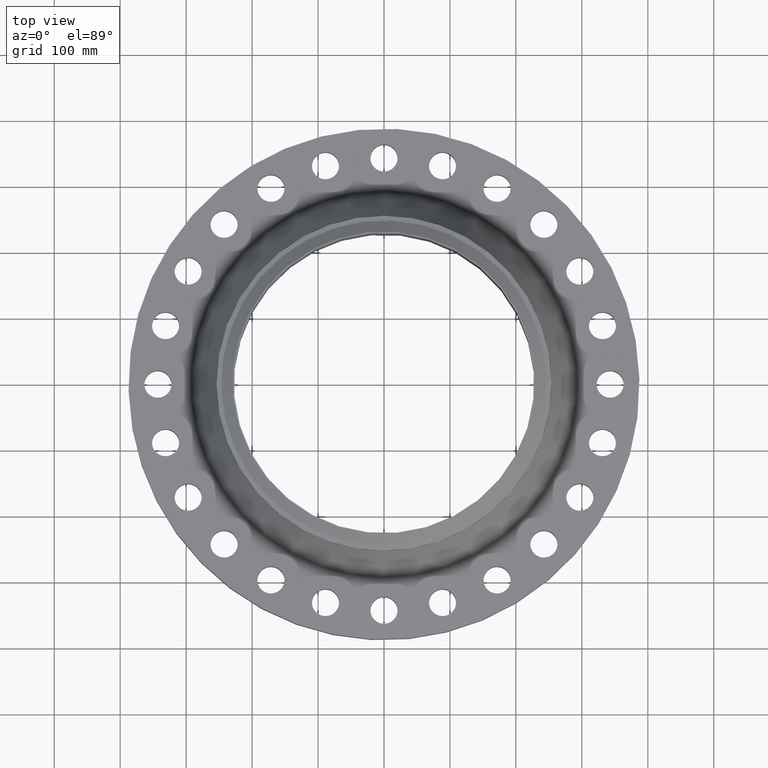
[diagram: clean part render]
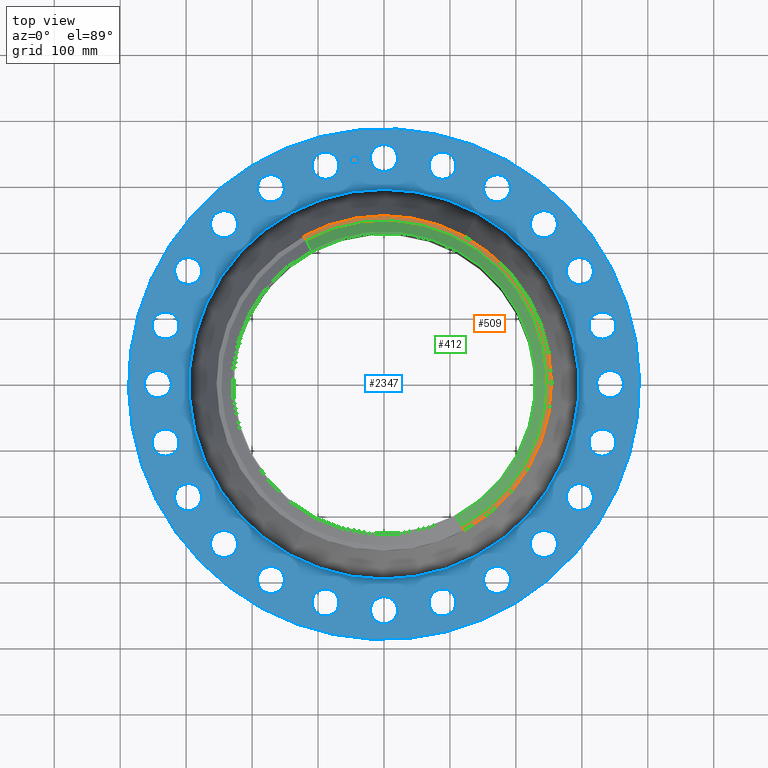
[diagram: same view with three faces highlighted in distinct colors, each labeled with its STEP entity id]
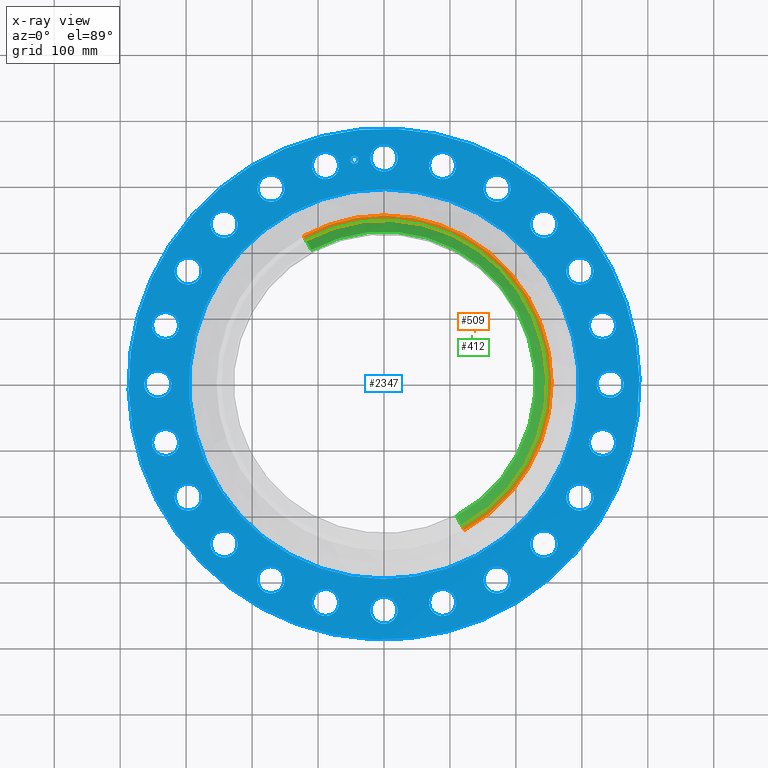
[diagram: x-ray of the same camera — body ghosted, the three highlighted faces saturated]
A machine part, top view with three faces highlighted in distinct colors.
The next image is the same camera in x-ray (body ghosted, the three faces saturated) — at least one of them is partly hidden behind the body in this view.
Their STEP definitions:

[orange] entity #509 — the highlighted conical surface has half-angle 80 deg.
#270=AXIS2_PLACEMENT_3D('Circle Axis2P3D',#268,#269,$) ;
#297=AXIS2_PLACEMENT_3D('Circle Axis2P3D',#295,#296,$) ;
#311=AXIS2_PLACEMENT_3D('Cone Axis2P3D',#308,#309,#310) ;
#480=AXIS2_PLACEMENT_3D('Circle Axis2P3D',#478,#479,$) ;
#265=CARTESIAN_POINT('Vertex',(4.79425538606,8.77582561894,6.05653971118)) ;
#268=CARTESIAN_POINT('Axis2P3D Location',(0.,0.,6.05653971118)) ;
#272=CARTESIAN_POINT('Vertex',(4.79425538606,-8.77582561894,6.05653971118)) ;
#292=CARTESIAN_POINT('Vertex',(-4.79425538606,8.77582561894,6.05653971118)) ;
#295=CARTESIAN_POINT('Axis2P3D Location',(0.,0.,6.05653971118)) ;
#308=CARTESIAN_POINT('Axis2P3D Location',(0.,0.,6.10141601924)) ;
#313=CARTESIAN_POINT('Line Origine',(4.73324700243,-8.66415052179,6.07897786521)) ;
#317=CARTESIAN_POINT('Vertex',(4.67223861881,-8.55247542463,6.10141601924)) ;
#324=CARTESIAN_POINT('Vertex',(-4.67223861881,8.55247542463,6.10141601924)) ;
#327=CARTESIAN_POINT('Line Origine',(-4.73324700243,8.66415052179,6.07897786521)) ;
#478=CARTESIAN_POINT('Axis2P3D Location',(0.,0.,6.10141601924)) ;
#269=DIRECTION('Axis2P3D Direction',(0.,0.,-0.0393700787402)) ;
#296=DIRECTION('Axis2P3D Direction',(0.,0.,-0.0393700787402)) ;
#309=DIRECTION('Axis2P3D Direction',(-0.,-0.,-0.0393700787402)) ;
#310=DIRECTION('Axis2P3D XDirection',(-0.0188750212049,0.0345504945626,0.)) ;
#314=DIRECTION('Vector Direction',(0.0185882672208,-0.0340255949157,-0.00683654242783)) ;
#328=DIRECTION('Vector Direction',(-0.0185882672208,0.0340255949157,-0.00683654242783)) ;
#479=DIRECTION('Axis2P3D Direction',(0.,0.,0.0393700787402)) ;
#315=VECTOR('Line Direction',#314,0.0393700787402) ;
#329=VECTOR('Line Direction',#328,0.0393700787402) ;
#503=ORIENTED_EDGE('',*,*,#331,.F.) ;
#504=ORIENTED_EDGE('',*,*,#482,.F.) ;
#505=ORIENTED_EDGE('',*,*,#319,.T.) ;
#506=ORIENTED_EDGE('',*,*,#274,.T.) ;
#507=ORIENTED_EDGE('',*,*,#299,.F.) ;
#509=ADVANCED_FACE('PartBody',(#508),#312,.T.) ;
#271=CIRCLE('generated circle',#270,10.) ;
#298=CIRCLE('generated circle',#297,10.) ;
#481=CIRCLE('generated circle',#480,9.74549380996) ;
#312=CONICAL_SURFACE('Cone',#311,9.74549380996,1.3962634016) ;
#274=EDGE_CURVE('',#273,#266,#271,.F.) ;
#299=EDGE_CURVE('',#293,#266,#298,.T.) ;
#319=EDGE_CURVE('',#318,#273,#316,.T.) ;
#331=EDGE_CURVE('',#325,#293,#330,.T.) ;
#482=EDGE_CURVE('',#318,#325,#481,.T.) ;
#502=EDGE_LOOP('',(#503,#504,#505,#506,#507)) ;
#508=FACE_OUTER_BOUND('',#502,.T.) ;
#316=LINE('Line',#313,#315) ;
#330=LINE('Line',#327,#329) ;
#266=VERTEX_POINT('',#265) ;
#273=VERTEX_POINT('',#272) ;
#293=VERTEX_POINT('',#292) ;
#318=VERTEX_POINT('',#317) ;
#325=VERTEX_POINT('',#324) ;

[blue] entity #2347 — the highlighted planar face has unit normal (0, 0, -1).
#65=AXIS2_PLACEMENT_3D('Circle Axis2P3D',#63,#64,$) ;
#82=AXIS2_PLACEMENT_3D('Circle Axis2P3D',#80,#81,$) ;
#115=AXIS2_PLACEMENT_3D('Circle Axis2P3D',#113,#114,$) ;
#139=AXIS2_PLACEMENT_3D('Circle Axis2P3D',#137,#138,$) ;
#156=AXIS2_PLACEMENT_3D('Circle Axis2P3D',#154,#155,$) ;
#191=AXIS2_PLACEMENT_3D('Circle Axis2P3D',#189,#190,$) ;
#1020=AXIS2_PLACEMENT_3D('Circle Axis2P3D',#1018,#1019,$) ;
#1032=AXIS2_PLACEMENT_3D('Circle Axis2P3D',#1030,#1031,$) ;
#1063=AXIS2_PLACEMENT_3D('Circle Axis2P3D',#1061,#1062,$) ;
#1075=AXIS2_PLACEMENT_3D('Circle Axis2P3D',#1073,#1074,$) ;
#1106=AXIS2_PLACEMENT_3D('Circle Axis2P3D',#1104,#1105,$) ;
#1118=AXIS2_PLACEMENT_3D('Circle Axis2P3D',#1116,#1117,$) ;
#1149=AXIS2_PLACEMENT_3D('Circle Axis2P3D',#1147,#1148,$) ;
#1161=AXIS2_PLACEMENT_3D('Circle Axis2P3D',#1159,#1160,$) ;
#1192=AXIS2_PLACEMENT_3D('Circle Axis2P3D',#1190,#1191,$) ;
#1204=AXIS2_PLACEMENT_3D('Circle Axis2P3D',#1202,#1203,$) ;
#1235=AXIS2_PLACEMENT_3D('Circle Axis2P3D',#1233,#1234,$) ;
#1247=AXIS2_PLACEMENT_3D('Circle Axis2P3D',#1245,#1246,$) ;
#1278=AXIS2_PLACEMENT_3D('Circle Axis2P3D',#1276,#1277,$) ;
#1290=AXIS2_PLACEMENT_3D('Circle Axis2P3D',#1288,#1289,$) ;
#1321=AXIS2_PLACEMENT_3D('Circle Axis2P3D',#1319,#1320,$) ;
#1333=AXIS2_PLACEMENT_3D('Circle Axis2P3D',#1331,#1332,$) ;
#1364=AXIS2_PLACEMENT_3D('Circle Axis2P3D',#1362,#1363,$) ;
#1376=AXIS2_PLACEMENT_3D('Circle Axis2P3D',#1374,#1375,$) ;
#1407=AXIS2_PLACEMENT_3D('Circle Axis2P3D',#1405,#1406,$) ;
#1419=AXIS2_PLACEMENT_3D('Circle Axis2P3D',#1417,#1418,$) ;
#1450=AXIS2_PLACEMENT_3D('Circle Axis2P3D',#1448,#1449,$) ;
#1462=AXIS2_PLACEMENT_3D('Circle Axis2P3D',#1460,#1461,$) ;
#1493=AXIS2_PLACEMENT_3D('Circle Axis2P3D',#1491,#1492,$) ;
#1505=AXIS2_PLACEMENT_3D('Circle Axis2P3D',#1503,#1504,$) ;
#1536=AXIS2_PLACEMENT_3D('Circle Axis2P3D',#1534,#1535,$) ;
#1548=AXIS2_PLACEMENT_3D('Circle Axis2P3D',#1546,#1547,$) ;
#1579=AXIS2_PLACEMENT_3D('Circle Axis2P3D',#1577,#1578,$) ;
#1591=AXIS2_PLACEMENT_3D('Circle Axis2P3D',#1589,#1590,$) ;
#1622=AXIS2_PLACEMENT_3D('Circle Axis2P3D',#1620,#1621,$) ;
#1634=AXIS2_PLACEMENT_3D('Circle Axis2P3D',#1632,#1633,$) ;
#1665=AXIS2_PLACEMENT_3D('Circle Axis2P3D',#1663,#1664,$) ;
#1677=AXIS2_PLACEMENT_3D('Circle Axis2P3D',#1675,#1676,$) ;
#1708=AXIS2_PLACEMENT_3D('Circle Axis2P3D',#1706,#1707,$) ;
#1720=AXIS2_PLACEMENT_3D('Circle Axis2P3D',#1718,#1719,$) ;
#1751=AXIS2_PLACEMENT_3D('Circle Axis2P3D',#1749,#1750,$) ;
#1763=AXIS2_PLACEMENT_3D('Circle Axis2P3D',#1761,#1762,$) ;
#1794=AXIS2_PLACEMENT_3D('Circle Axis2P3D',#1792,#1793,$) ;
#1806=AXIS2_PLACEMENT_3D('Circle Axis2P3D',#1804,#1805,$) ;
#1837=AXIS2_PLACEMENT_3D('Circle Axis2P3D',#1835,#1836,$) ;
#1849=AXIS2_PLACEMENT_3D('Circle Axis2P3D',#1847,#1848,$) ;
#1880=AXIS2_PLACEMENT_3D('Circle Axis2P3D',#1878,#1879,$) ;
#1892=AXIS2_PLACEMENT_3D('Circle Axis2P3D',#1890,#1891,$) ;
#1923=AXIS2_PLACEMENT_3D('Circle Axis2P3D',#1921,#1922,$) ;
#1935=AXIS2_PLACEMENT_3D('Circle Axis2P3D',#1933,#1934,$) ;
#1966=AXIS2_PLACEMENT_3D('Circle Axis2P3D',#1964,#1965,$) ;
#1978=AXIS2_PLACEMENT_3D('Circle Axis2P3D',#1976,#1977,$) ;
#2223=AXIS2_PLACEMENT_3D('Plane Axis2P3D',#2220,#2221,#2222) ;
#2331=AXIS2_PLACEMENT_3D('Circle Axis2P3D',#2329,#2330,$) ;
#2340=AXIS2_PLACEMENT_3D('Circle Axis2P3D',#2338,#2339,$) ;
#46=CARTESIAN_POINT('Vertex',(-0.710841875134,13.8883346863,2.75000000001)) ;
#60=CARTESIAN_POINT('Vertex',(0.710841875134,13.1116653138,2.75000000001)) ;
#63=CARTESIAN_POINT('Axis2P3D Location',(0.,13.5000000001,2.75000000001)) ;
#80=CARTESIAN_POINT('Axis2P3D Location',(0.,13.5000000001,2.75000000001)) ;
#110=CARTESIAN_POINT('Vertex',(-7.31123946374,-13.3831340689,2.75000000001)) ;
#113=CARTESIAN_POINT('Axis2P3D Location',(0.,0.,2.75000000001)) ;
#117=CARTESIAN_POINT('Vertex',(7.31123946374,13.3831340689,2.75000000001)) ;
#137=CARTESIAN_POINT('Axis2P3D Location',(0.,0.,2.75000000001)) ;
#154=CARTESIAN_POINT('Axis2P3D Location',(0.,0.,2.75000000001)) ;
#158=CARTESIAN_POINT('Vertex',(5.5774594257,10.2094709971,2.75000000001)) ;
#160=CARTESIAN_POINT('Vertex',(-5.5774594257,-10.2094709971,2.75000000001)) ;
#189=CARTESIAN_POINT('Axis2P3D Location',(0.,0.,2.75000000001)) ;
#1008=CARTESIAN_POINT('Vertex',(-2.90794499598,-13.599080573,2.75000000001)) ;
#1015=CARTESIAN_POINT('Vertex',(-4.08016922182,-12.4809167369,2.75000000001)) ;
#1018=CARTESIAN_POINT('Axis2P3D Location',(-3.4940571089,-13.039998655,2.75000000001)) ;
#1030=CARTESIAN_POINT('Axis2P3D Location',(-3.4940571089,-13.039998655,2.75000000001)) ;
#1051=CARTESIAN_POINT('Vertex',(6.32856022122,12.3830715922,2.75000000001)) ;
#1058=CARTESIAN_POINT('Vertex',(7.17143977883,10.9996143101,2.75000000001)) ;
#1061=CARTESIAN_POINT('Axis2P3D Location',(6.75000000003,11.6913429511,2.75000000001)) ;
#1073=CARTESIAN_POINT('Axis2P3D Location',(6.75000000003,11.6913429511,2.75000000001)) ;
#1094=CARTESIAN_POINT('Vertex',(-6.32856022122,-12.3830715922,2.75000000001)) ;
#1101=CARTESIAN_POINT('Vertex',(-7.17143977883,-10.9996143101,2.75000000001)) ;
#1104=CARTESIAN_POINT('Axis2P3D Location',(-6.75000000003,-11.6913429511,2.75000000001)) ;
#1116=CARTESIAN_POINT('Axis2P3D Location',(-6.75000000003,-11.6913429511,2.75000000001)) ;
#1137=CARTESIAN_POINT('Vertex',(9.31789452583,10.3231767463,2.75000000001)) ;
#1144=CARTESIAN_POINT('Vertex',(9.77398856628,8.76870634577,2.75000000001)) ;
#1147=CARTESIAN_POINT('Axis2P3D Location',(9.54594154606,9.54594154606,2.75000000001)) ;
#1159=CARTESIAN_POINT('Axis2P3D Location',(9.54594154606,9.54594154606,2.75000000001)) ;
#1180=CARTESIAN_POINT('Vertex',(-9.31789452583,-10.3231767463,2.75000000001)) ;
#1187=CARTESIAN_POINT('Vertex',(-9.77398856628,-8.76870634577,2.75000000001)) ;
#1190=CARTESIAN_POINT('Axis2P3D Location',(-9.54594154606,-9.54594154606,2.75000000001)) ;
#1202=CARTESIAN_POINT('Axis2P3D Location',(-9.54594154606,-9.54594154606,2.75000000001)) ;
#1223=CARTESIAN_POINT('Vertex',(11.6722297171,7.5597744651,2.75000000001)) ;
#1230=CARTESIAN_POINT('Vertex',(11.7104561852,5.94022553495,2.75000000001)) ;
#1233=CARTESIAN_POINT('Axis2P3D Location',(11.6913429511,6.75000000003,2.75000000001)) ;
#1245=CARTESIAN_POINT('Axis2P3D Location',(11.6913429511,6.75000000003,2.75000000001)) ;
#1266=CARTESIAN_POINT('Vertex',(-11.6722297171,-7.5597744651,2.75000000001)) ;
#1273=CARTESIAN_POINT('Vertex',(-11.7104561852,-5.94022553495,2.75000000001)) ;
#1276=CARTESIAN_POINT('Axis2P3D Location',(-11.6913429511,-6.75000000003,2.75000000001)) ;
#1288=CARTESIAN_POINT('Axis2P3D Location',(-11.6913429511,-6.75000000003,2.75000000001)) ;
#1309=CARTESIAN_POINT('Vertex',(13.2311217423,4.28118604718,2.75000000001)) ;
#1316=CARTESIAN_POINT('Vertex',(12.8488755676,2.70692817062,2.75000000001)) ;
#1319=CARTESIAN_POINT('Axis2P3D Location',(13.039998655,3.4940571089,2.75000000001)) ;
#1331=CARTESIAN_POINT('Axis2P3D Location',(13.039998655,3.4940571089,2.75000000001)) ;
#1352=CARTESIAN_POINT('Vertex',(-13.2311217423,-4.28118604718,2.75000000001)) ;
#1359=CARTESIAN_POINT('Vertex',(-12.8488755676,-2.70692817062,2.75000000001)) ;
#1362=CARTESIAN_POINT('Axis2P3D Location',(-13.039998655,-3.4940571089,2.75000000001)) ;
#1374=CARTESIAN_POINT('Axis2P3D Location',(-13.039998655,-3.4940571089,2.75000000001)) ;
#1395=CARTESIAN_POINT('Vertex',(13.8883346863,0.710841875134,2.75000000001)) ;
#1402=CARTESIAN_POINT('Vertex',(13.1116653138,-0.710841875134,2.75000000001)) ;
#1405=CARTESIAN_POINT('Axis2P3D Location',(13.5000000001,-1.41129328698E-015,2.75000000001)) ;
#1417=CARTESIAN_POINT('Axis2P3D Location',(13.5000000001,-1.41129328698E-015,2.75000000001)) ;
#1438=CARTESIAN_POINT('Vertex',(-13.8883346863,-0.710841875134,2.75000000001)) ;
#1445=CARTESIAN_POINT('Vertex',(-13.1116653138,0.710841875134,2.75000000001)) ;
#1448=CARTESIAN_POINT('Axis2P3D Location',(-13.5000000001,-2.47990976828E-015,2.75000000001)) ;
#1460=CARTESIAN_POINT('Axis2P3D Location',(-13.5000000001,-2.47990976828E-015,2.75000000001)) ;
#1481=CARTESIAN_POINT('Vertex',(13.599080573,-2.90794499598,2.75000000001)) ;
#1488=CARTESIAN_POINT('Vertex',(12.4809167369,-4.08016922182,2.75000000001)) ;
#1491=CARTESIAN_POINT('Axis2P3D Location',(13.039998655,-3.4940571089,2.75000000001)) ;
#1503=CARTESIAN_POINT('Axis2P3D Location',(13.039998655,-3.4940571089,2.75000000001)) ;
#1524=CARTESIAN_POINT('Vertex',(-13.599080573,2.90794499598,2.75000000001)) ;
#1531=CARTESIAN_POINT('Vertex',(-12.4809167369,4.08016922182,2.75000000001)) ;
#1534=CARTESIAN_POINT('Axis2P3D Location',(-13.039998655,3.4940571089,2.75000000001)) ;
#1546=CARTESIAN_POINT('Axis2P3D Location',(-13.039998655,3.4940571089,2.75000000001)) ;
#1567=CARTESIAN_POINT('Vertex',(12.3830715922,-6.32856022122,2.75000000001)) ;
#1574=CARTESIAN_POINT('Vertex',(10.9996143101,-7.17143977883,2.75000000001)) ;
#1577=CARTESIAN_POINT('Axis2P3D Location',(11.6913429511,-6.75000000003,2.75000000001)) ;
#1589=CARTESIAN_POINT('Axis2P3D Location',(11.6913429511,-6.75000000003,2.75000000001)) ;
#1610=CARTESIAN_POINT('Vertex',(-12.3830715922,6.32856022122,2.75000000001)) ;
#1617=CARTESIAN_POINT('Vertex',(-10.9996143101,7.17143977883,2.75000000001)) ;
#1620=CARTESIAN_POINT('Axis2P3D Location',(-11.6913429511,6.75000000003,2.75000000001)) ;
#1632=CARTESIAN_POINT('Axis2P3D Location',(-11.6913429511,6.75000000003,2.75000000001)) ;
#1653=CARTESIAN_POINT('Vertex',(10.3231767463,-9.31789452583,2.75000000001)) ;
#1660=CARTESIAN_POINT('Vertex',(8.76870634577,-9.77398856628,2.75000000001)) ;
#1663=CARTESIAN_POINT('Axis2P3D Location',(9.54594154606,-9.54594154606,2.75000000001)) ;
#1675=CARTESIAN_POINT('Axis2P3D Location',(9.54594154606,-9.54594154606,2.75000000001)) ;
#1696=CARTESIAN_POINT('Vertex',(-10.3231767463,9.31789452583,2.75000000001)) ;
#1703=CARTESIAN_POINT('Vertex',(-8.76870634577,9.77398856628,2.75000000001)) ;
#1706=CARTESIAN_POINT('Axis2P3D Location',(-9.54594154606,9.54594154606,2.75000000001)) ;
#1718=CARTESIAN_POINT('Axis2P3D Location',(-9.54594154606,9.54594154606,2.75000000001)) ;
#1739=CARTESIAN_POINT('Vertex',(7.5597744651,-11.6722297171,2.75000000001)) ;
#1746=CARTESIAN_POINT('Vertex',(5.94022553495,-11.7104561852,2.75000000001)) ;
#1749=CARTESIAN_POINT('Axis2P3D Location',(6.75000000003,-11.6913429511,2.75000000001)) ;
#1761=CARTESIAN_POINT('Axis2P3D Location',(6.75000000003,-11.6913429511,2.75000000001)) ;
#1782=CARTESIAN_POINT('Vertex',(-7.5597744651,11.6722297171,2.75000000001)) ;
#1789=CARTESIAN_POINT('Vertex',(-5.94022553495,11.7104561852,2.75000000001)) ;
#1792=CARTESIAN_POINT('Axis2P3D Location',(-6.75000000003,11.6913429511,2.75000000001)) ;
#1804=CARTESIAN_POINT('Axis2P3D Location',(-6.75000000003,11.6913429511,2.75000000001)) ;
#1825=CARTESIAN_POINT('Vertex',(4.28118604718,-13.2311217423,2.75000000001)) ;
#1832=CARTESIAN_POINT('Vertex',(2.70692817062,-12.8488755676,2.75000000001)) ;
#1835=CARTESIAN_POINT('Axis2P3D Location',(3.4940571089,-13.039998655,2.75000000001)) ;
#1847=CARTESIAN_POINT('Axis2P3D Location',(3.4940571089,-13.039998655,2.75000000001)) ;
#1868=CARTESIAN_POINT('Vertex',(-4.28118604718,13.2311217423,2.75000000001)) ;
#1875=CARTESIAN_POINT('Vertex',(-2.70692817062,12.8488755676,2.75000000001)) ;
#1878=CARTESIAN_POINT('Axis2P3D Location',(-3.4940571089,13.039998655,2.75000000001)) ;
#1890=CARTESIAN_POINT('Axis2P3D Location',(-3.4940571089,13.039998655,2.75000000001)) ;
#1911=CARTESIAN_POINT('Vertex',(0.710841875134,-13.8883346863,2.75000000001)) ;
#1918=CARTESIAN_POINT('Vertex',(-0.710841875134,-13.1116653138,2.75000000001)) ;
#1921=CARTESIAN_POINT('Axis2P3D Location',(1.65327317886E-015,-13.5000000001,2.75000000001)) ;
#1933=CARTESIAN_POINT('Axis2P3D Location',(1.65327317886E-015,-13.5000000001,2.75000000001)) ;
#1954=CARTESIAN_POINT('Vertex',(2.90794499598,13.599080573,2.75000000001)) ;
#1961=CARTESIAN_POINT('Vertex',(4.08016922182,12.4809167369,2.75000000001)) ;
#1964=CARTESIAN_POINT('Axis2P3D Location',(3.4940571089,13.039998655,2.75000000001)) ;
#1976=CARTESIAN_POINT('Axis2P3D Location',(3.4940571089,13.039998655,2.75000000001)) ;
#2220=CARTESIAN_POINT('Axis2P3D Location',(0.,15.2500000001,2.75000000001)) ;
#2329=CARTESIAN_POINT('Axis2P3D Location',(-1.76210359498,13.3845056286,2.75000000001)) ;
#2333=CARTESIAN_POINT('Vertex',(-2.00748619817,13.352200396,2.75000000001)) ;
#2335=CARTESIAN_POINT('Vertex',(-1.51672099179,13.4168108612,2.75000000001)) ;
#2338=CARTESIAN_POINT('Axis2P3D Location',(-1.76210359498,13.3845056286,2.75000000001)) ;
#64=DIRECTION('Axis2P3D Direction',(0.,-0.,-0.0393700787402)) ;
#81=DIRECTION('Axis2P3D Direction',(0.,-0.,-0.0393700787402)) ;
#114=DIRECTION('Axis2P3D Direction',(0.,0.,-0.0393700787402)) ;
#138=DIRECTION('Axis2P3D Direction',(0.,0.,-0.0393700787402)) ;
#155=DIRECTION('Axis2P3D Direction',(0.,0.,-0.0393700787402)) ;
#190=DIRECTION('Axis2P3D Direction',(0.,0.,-0.0393700787402)) ;
#1019=DIRECTION('Axis2P3D Direction',(0.,0.,-0.0393700787402)) ;
#1031=DIRECTION('Axis2P3D Direction',(0.,0.,-0.0393700787402)) ;
#1062=DIRECTION('Axis2P3D Direction',(0.,-0.,-0.0393700787402)) ;
#1074=DIRECTION('Axis2P3D Direction',(0.,-0.,-0.0393700787402)) ;
#1105=DIRECTION('Axis2P3D Direction',(0.,0.,-0.0393700787402)) ;
#1117=DIRECTION('Axis2P3D Direction',(0.,0.,-0.0393700787402)) ;
#1148=DIRECTION('Axis2P3D Direction',(0.,-0.,-0.0393700787402)) ;
#1160=DIRECTION('Axis2P3D Direction',(0.,-0.,-0.0393700787402)) ;
#1191=DIRECTION('Axis2P3D Direction',(0.,0.,-0.0393700787402)) ;
#1203=DIRECTION('Axis2P3D Direction',(0.,0.,-0.0393700787402)) ;
#1234=DIRECTION('Axis2P3D Direction',(0.,-0.,-0.0393700787402)) ;
#1246=DIRECTION('Axis2P3D Direction',(0.,-0.,-0.0393700787402)) ;
#1277=DIRECTION('Axis2P3D Direction',(0.,0.,-0.0393700787402)) ;
#1289=DIRECTION('Axis2P3D Direction',(0.,0.,-0.0393700787402)) ;
#1320=DIRECTION('Axis2P3D Direction',(0.,-0.,-0.0393700787402)) ;
#1332=DIRECTION('Axis2P3D Direction',(0.,-0.,-0.0393700787402)) ;
#1363=DIRECTION('Axis2P3D Direction',(0.,0.,-0.0393700787402)) ;
#1375=DIRECTION('Axis2P3D Direction',(0.,0.,-0.0393700787402)) ;
#1406=DIRECTION('Axis2P3D Direction',(0.,-0.,-0.0393700787402)) ;
#1418=DIRECTION('Axis2P3D Direction',(0.,-0.,-0.0393700787402)) ;
#1449=DIRECTION('Axis2P3D Direction',(0.,0.,-0.0393700787402)) ;
#1461=DIRECTION('Axis2P3D Direction',(0.,0.,-0.0393700787402)) ;
#1492=DIRECTION('Axis2P3D Direction',(-0.,0.,-0.0393700787402)) ;
#1504=DIRECTION('Axis2P3D Direction',(-0.,0.,-0.0393700787402)) ;
#1535=DIRECTION('Axis2P3D Direction',(0.,0.,-0.0393700787402)) ;
#1547=DIRECTION('Axis2P3D Direction',(0.,0.,-0.0393700787402)) ;
#1578=DIRECTION('Axis2P3D Direction',(-0.,0.,-0.0393700787402)) ;
#1590=DIRECTION('Axis2P3D Direction',(-0.,0.,-0.0393700787402)) ;
#1621=DIRECTION('Axis2P3D Direction',(0.,0.,-0.0393700787402)) ;
#1633=DIRECTION('Axis2P3D Direction',(0.,0.,-0.0393700787402)) ;
#1664=DIRECTION('Axis2P3D Direction',(-0.,0.,-0.0393700787402)) ;
#1676=DIRECTION('Axis2P3D Direction',(-0.,0.,-0.0393700787402)) ;
#1707=DIRECTION('Axis2P3D Direction',(0.,0.,-0.0393700787402)) ;
#1719=DIRECTION('Axis2P3D Direction',(0.,0.,-0.0393700787402)) ;
#1750=DIRECTION('Axis2P3D Direction',(-0.,0.,-0.0393700787402)) ;
#1762=DIRECTION('Axis2P3D Direction',(-0.,0.,-0.0393700787402)) ;
#1793=DIRECTION('Axis2P3D Direction',(0.,0.,-0.0393700787402)) ;
#1805=DIRECTION('Axis2P3D Direction',(0.,0.,-0.0393700787402)) ;
#1836=DIRECTION('Axis2P3D Direction',(-0.,0.,-0.0393700787402)) ;
#1848=DIRECTION('Axis2P3D Direction',(-0.,0.,-0.0393700787402)) ;
#1879=DIRECTION('Axis2P3D Direction',(0.,0.,-0.0393700787402)) ;
#1891=DIRECTION('Axis2P3D Direction',(0.,0.,-0.0393700787402)) ;
#1922=DIRECTION('Axis2P3D Direction',(-0.,0.,-0.0393700787402)) ;
#1934=DIRECTION('Axis2P3D Direction',(-0.,0.,-0.0393700787402)) ;
#1965=DIRECTION('Axis2P3D Direction',(0.,-0.,-0.0393700787402)) ;
#1977=DIRECTION('Axis2P3D Direction',(0.,-0.,-0.0393700787402)) ;
#2221=DIRECTION('Axis2P3D Direction',(0.,0.,-0.0393700787402)) ;
#2222=DIRECTION('Axis2P3D XDirection',(0.0393700787402,0.,0.)) ;
#2330=DIRECTION('Axis2P3D Direction',(0.,0.,-0.0393700787402)) ;
#2339=DIRECTION('Axis2P3D Direction',(0.,0.,-0.0393700787402)) ;
#2226=ORIENTED_EDGE('',*,*,#141,.F.) ;
#2227=ORIENTED_EDGE('',*,*,#119,.F.) ;
#2230=ORIENTED_EDGE('',*,*,#67,.T.) ;
#2231=ORIENTED_EDGE('',*,*,#84,.T.) ;
#2234=ORIENTED_EDGE('',*,*,#193,.T.) ;
#2235=ORIENTED_EDGE('',*,*,#162,.T.) ;
#2238=ORIENTED_EDGE('',*,*,#1980,.T.) ;
#2239=ORIENTED_EDGE('',*,*,#1968,.T.) ;
#2242=ORIENTED_EDGE('',*,*,#1077,.T.) ;
#2243=ORIENTED_EDGE('',*,*,#1065,.T.) ;
#2246=ORIENTED_EDGE('',*,*,#1163,.T.) ;
#2247=ORIENTED_EDGE('',*,*,#1151,.T.) ;
#2250=ORIENTED_EDGE('',*,*,#1249,.T.) ;
#2251=ORIENTED_EDGE('',*,*,#1237,.T.) ;
#2254=ORIENTED_EDGE('',*,*,#1335,.T.) ;
#2255=ORIENTED_EDGE('',*,*,#1323,.T.) ;
#2258=ORIENTED_EDGE('',*,*,#1421,.T.) ;
#2259=ORIENTED_EDGE('',*,*,#1409,.T.) ;
#2262=ORIENTED_EDGE('',*,*,#1507,.T.) ;
#2263=ORIENTED_EDGE('',*,*,#1495,.T.) ;
#2266=ORIENTED_EDGE('',*,*,#1593,.T.) ;
#2267=ORIENTED_EDGE('',*,*,#1581,.T.) ;
#2270=ORIENTED_EDGE('',*,*,#1679,.T.) ;
#2271=ORIENTED_EDGE('',*,*,#1667,.T.) ;
#2274=ORIENTED_EDGE('',*,*,#1765,.T.) ;
#2275=ORIENTED_EDGE('',*,*,#1753,.T.) ;
#2278=ORIENTED_EDGE('',*,*,#1851,.T.) ;
#2279=ORIENTED_EDGE('',*,*,#1839,.T.) ;
#2282=ORIENTED_EDGE('',*,*,#1937,.T.) ;
#2283=ORIENTED_EDGE('',*,*,#1925,.T.) ;
#2286=ORIENTED_EDGE('',*,*,#1034,.T.) ;
#2287=ORIENTED_EDGE('',*,*,#1022,.T.) ;
#2290=ORIENTED_EDGE('',*,*,#1120,.T.) ;
#2291=ORIENTED_EDGE('',*,*,#1108,.T.) ;
#2294=ORIENTED_EDGE('',*,*,#1206,.T.) ;
#2295=ORIENTED_EDGE('',*,*,#1194,.T.) ;
#2298=ORIENTED_EDGE('',*,*,#1292,.T.) ;
#2299=ORIENTED_EDGE('',*,*,#1280,.T.) ;
#2302=ORIENTED_EDGE('',*,*,#1378,.T.) ;
#2303=ORIENTED_EDGE('',*,*,#1366,.T.) ;
#2306=ORIENTED_EDGE('',*,*,#1464,.T.) ;
#2307=ORIENTED_EDGE('',*,*,#1452,.T.) ;
#2310=ORIENTED_EDGE('',*,*,#1550,.T.) ;
#2311=ORIENTED_EDGE('',*,*,#1538,.T.) ;
#2314=ORIENTED_EDGE('',*,*,#1636,.T.) ;
#2315=ORIENTED_EDGE('',*,*,#1624,.T.) ;
#2318=ORIENTED_EDGE('',*,*,#1722,.T.) ;
#2319=ORIENTED_EDGE('',*,*,#1710,.T.) ;
#2322=ORIENTED_EDGE('',*,*,#1808,.T.) ;
#2323=ORIENTED_EDGE('',*,*,#1796,.T.) ;
#2326=ORIENTED_EDGE('',*,*,#1894,.T.) ;
#2327=ORIENTED_EDGE('',*,*,#1882,.T.) ;
#2344=ORIENTED_EDGE('',*,*,#2337,.T.) ;
#2345=ORIENTED_EDGE('',*,*,#2342,.T.) ;
#2232=FACE_BOUND('',#2229,.T.) ;
#2236=FACE_BOUND('',#2233,.T.) ;
#2240=FACE_BOUND('',#2237,.T.) ;
#2244=FACE_BOUND('',#2241,.T.) ;
#2248=FACE_BOUND('',#2245,.T.) ;
#2252=FACE_BOUND('',#2249,.T.) ;
#2256=FACE_BOUND('',#2253,.T.) ;
#2260=FACE_BOUND('',#2257,.T.) ;
#2264=FACE_BOUND('',#2261,.T.) ;
#2268=FACE_BOUND('',#2265,.T.) ;
#2272=FACE_BOUND('',#2269,.T.) ;
#2276=FACE_BOUND('',#2273,.T.) ;
#2280=FACE_BOUND('',#2277,.T.) ;
#2284=FACE_BOUND('',#2281,.T.) ;
#2288=FACE_BOUND('',#2285,.T.) ;
#2292=FACE_BOUND('',#2289,.T.) ;
#2296=FACE_BOUND('',#2293,.T.) ;
#2300=FACE_BOUND('',#2297,.T.) ;
#2304=FACE_BOUND('',#2301,.T.) ;
#2308=FACE_BOUND('',#2305,.T.) ;
#2312=FACE_BOUND('',#2309,.T.) ;
#2316=FACE_BOUND('',#2313,.T.) ;
#2320=FACE_BOUND('',#2317,.T.) ;
#2324=FACE_BOUND('',#2321,.T.) ;
#2328=FACE_BOUND('',#2325,.T.) ;
#2346=FACE_BOUND('',#2343,.T.) ;
#2347=ADVANCED_FACE('PartBody',(#2228,#2232,#2236,#2240,#2244,#2248,#2252,#2256,#2260,#2264,#2268,#2272,#2276,#2280,#2284,#2288,#2292,#2296,#2300,#2304,#2308,#2312,#2316,#2320,#2324,#2328,#2346),#2224,.F.) ;
#66=CIRCLE('generated circle',#65,0.810000000003) ;
#83=CIRCLE('generated circle',#82,0.810000000003) ;
#116=CIRCLE('generated circle',#115,15.2500000001) ;
#140=CIRCLE('generated circle',#139,15.2500000001) ;
#157=CIRCLE('generated circle',#156,11.6336302024) ;
#192=CIRCLE('generated circle',#191,11.6336302024) ;
#1021=CIRCLE('generated circle',#1020,0.810000000003) ;
#1033=CIRCLE('generated circle',#1032,0.810000000003) ;
#1064=CIRCLE('generated circle',#1063,0.810000000003) ;
#1076=CIRCLE('generated circle',#1075,0.810000000003) ;
#1107=CIRCLE('generated circle',#1106,0.810000000003) ;
#1119=CIRCLE('generated circle',#1118,0.810000000003) ;
#1150=CIRCLE('generated circle',#1149,0.810000000003) ;
#1162=CIRCLE('generated circle',#1161,0.810000000003) ;
#1193=CIRCLE('generated circle',#1192,0.810000000003) ;
#1205=CIRCLE('generated circle',#1204,0.810000000003) ;
#1236=CIRCLE('generated circle',#1235,0.810000000003) ;
#1248=CIRCLE('generated circle',#1247,0.810000000003) ;
#1279=CIRCLE('generated circle',#1278,0.810000000003) ;
#1291=CIRCLE('generated circle',#1290,0.810000000003) ;
#1322=CIRCLE('generated circle',#1321,0.810000000003) ;
#1334=CIRCLE('generated circle',#1333,0.810000000003) ;
#1365=CIRCLE('generated circle',#1364,0.810000000003) ;
#1377=CIRCLE('generated circle',#1376,0.810000000003) ;
#1408=CIRCLE('generated circle',#1407,0.810000000003) ;
#1420=CIRCLE('generated circle',#1419,0.810000000003) ;
#1451=CIRCLE('generated circle',#1450,0.810000000003) ;
#1463=CIRCLE('generated circle',#1462,0.810000000003) ;
#1494=CIRCLE('generated circle',#1493,0.810000000003) ;
#1506=CIRCLE('generated circle',#1505,0.810000000003) ;
#1537=CIRCLE('generated circle',#1536,0.810000000003) ;
#1549=CIRCLE('generated circle',#1548,0.810000000003) ;
#1580=CIRCLE('generated circle',#1579,0.810000000003) ;
#1592=CIRCLE('generated circle',#1591,0.810000000003) ;
#1623=CIRCLE('generated circle',#1622,0.810000000003) ;
#1635=CIRCLE('generated circle',#1634,0.810000000003) ;
#1666=CIRCLE('generated circle',#1665,0.810000000003) ;
#1678=CIRCLE('generated circle',#1677,0.810000000003) ;
#1709=CIRCLE('generated circle',#1708,0.810000000003) ;
#1721=CIRCLE('generated circle',#1720,0.810000000003) ;
#1752=CIRCLE('generated circle',#1751,0.810000000003) ;
#1764=CIRCLE('generated circle',#1763,0.810000000003) ;
#1795=CIRCLE('generated circle',#1794,0.810000000003) ;
#1807=CIRCLE('generated circle',#1806,0.810000000003) ;
#1838=CIRCLE('generated circle',#1837,0.810000000003) ;
#1850=CIRCLE('generated circle',#1849,0.810000000003) ;
#1881=CIRCLE('generated circle',#1880,0.810000000003) ;
#1893=CIRCLE('generated circle',#1892,0.810000000003) ;
#1924=CIRCLE('generated circle',#1923,0.810000000003) ;
#1936=CIRCLE('generated circle',#1935,0.810000000003) ;
#1967=CIRCLE('generated circle',#1966,0.810000000003) ;
#1979=CIRCLE('generated circle',#1978,0.810000000003) ;
#2332=CIRCLE('generated circle',#2331,0.247500000001) ;
#2341=CIRCLE('generated circle',#2340,0.247500000001) ;
#67=EDGE_CURVE('',#47,#61,#66,.T.) ;
#84=EDGE_CURVE('',#61,#47,#83,.T.) ;
#119=EDGE_CURVE('',#111,#118,#116,.T.) ;
#141=EDGE_CURVE('',#118,#111,#140,.T.) ;
#162=EDGE_CURVE('',#159,#161,#157,.T.) ;
#193=EDGE_CURVE('',#161,#159,#192,.T.) ;
#1022=EDGE_CURVE('',#1009,#1016,#1021,.T.) ;
#1034=EDGE_CURVE('',#1016,#1009,#1033,.T.) ;
#1065=EDGE_CURVE('',#1052,#1059,#1064,.T.) ;
#1077=EDGE_CURVE('',#1059,#1052,#1076,.T.) ;
#1108=EDGE_CURVE('',#1095,#1102,#1107,.T.) ;
#1120=EDGE_CURVE('',#1102,#1095,#1119,.T.) ;
#1151=EDGE_CURVE('',#1138,#1145,#1150,.T.) ;
#1163=EDGE_CURVE('',#1145,#1138,#1162,.T.) ;
#1194=EDGE_CURVE('',#1181,#1188,#1193,.T.) ;
#1206=EDGE_CURVE('',#1188,#1181,#1205,.T.) ;
#1237=EDGE_CURVE('',#1224,#1231,#1236,.T.) ;
#1249=EDGE_CURVE('',#1231,#1224,#1248,.T.) ;
#1280=EDGE_CURVE('',#1267,#1274,#1279,.T.) ;
#1292=EDGE_CURVE('',#1274,#1267,#1291,.T.) ;
#1323=EDGE_CURVE('',#1310,#1317,#1322,.T.) ;
#1335=EDGE_CURVE('',#1317,#1310,#1334,.T.) ;
#1366=EDGE_CURVE('',#1353,#1360,#1365,.T.) ;
#1378=EDGE_CURVE('',#1360,#1353,#1377,.T.) ;
#1409=EDGE_CURVE('',#1396,#1403,#1408,.T.) ;
#1421=EDGE_CURVE('',#1403,#1396,#1420,.T.) ;
#1452=EDGE_CURVE('',#1439,#1446,#1451,.T.) ;
#1464=EDGE_CURVE('',#1446,#1439,#1463,.T.) ;
#1495=EDGE_CURVE('',#1482,#1489,#1494,.T.) ;
#1507=EDGE_CURVE('',#1489,#1482,#1506,.T.) ;
#1538=EDGE_CURVE('',#1525,#1532,#1537,.T.) ;
#1550=EDGE_CURVE('',#1532,#1525,#1549,.T.) ;
#1581=EDGE_CURVE('',#1568,#1575,#1580,.T.) ;
#1593=EDGE_CURVE('',#1575,#1568,#1592,.T.) ;
#1624=EDGE_CURVE('',#1611,#1618,#1623,.T.) ;
#1636=EDGE_CURVE('',#1618,#1611,#1635,.T.) ;
#1667=EDGE_CURVE('',#1654,#1661,#1666,.T.) ;
#1679=EDGE_CURVE('',#1661,#1654,#1678,.T.) ;
#1710=EDGE_CURVE('',#1697,#1704,#1709,.T.) ;
#1722=EDGE_CURVE('',#1704,#1697,#1721,.T.) ;
#1753=EDGE_CURVE('',#1740,#1747,#1752,.T.) ;
#1765=EDGE_CURVE('',#1747,#1740,#1764,.T.) ;
#1796=EDGE_CURVE('',#1783,#1790,#1795,.T.) ;
#1808=EDGE_CURVE('',#1790,#1783,#1807,.T.) ;
#1839=EDGE_CURVE('',#1826,#1833,#1838,.T.) ;
#1851=EDGE_CURVE('',#1833,#1826,#1850,.T.) ;
#1882=EDGE_CURVE('',#1869,#1876,#1881,.T.) ;
#1894=EDGE_CURVE('',#1876,#1869,#1893,.T.) ;
#1925=EDGE_CURVE('',#1912,#1919,#1924,.T.) ;
#1937=EDGE_CURVE('',#1919,#1912,#1936,.T.) ;
#1968=EDGE_CURVE('',#1955,#1962,#1967,.T.) ;
#1980=EDGE_CURVE('',#1962,#1955,#1979,.T.) ;
#2337=EDGE_CURVE('',#2334,#2336,#2332,.T.) ;
#2342=EDGE_CURVE('',#2336,#2334,#2341,.T.) ;
#2225=EDGE_LOOP('',(#2226,#2227)) ;
#2229=EDGE_LOOP('',(#2230,#2231)) ;
#2233=EDGE_LOOP('',(#2234,#2235)) ;
#2237=EDGE_LOOP('',(#2238,#2239)) ;
#2241=EDGE_LOOP('',(#2242,#2243)) ;
#2245=EDGE_LOOP('',(#2246,#2247)) ;
#2249=EDGE_LOOP('',(#2250,#2251)) ;
#2253=EDGE_LOOP('',(#2254,#2255)) ;
#2257=EDGE_LOOP('',(#2258,#2259)) ;
#2261=EDGE_LOOP('',(#2262,#2263)) ;
#2265=EDGE_LOOP('',(#2266,#2267)) ;
#2269=EDGE_LOOP('',(#2270,#2271)) ;
#2273=EDGE_LOOP('',(#2274,#2275)) ;
#2277=EDGE_LOOP('',(#2278,#2279)) ;
#2281=EDGE_LOOP('',(#2282,#2283)) ;
#2285=EDGE_LOOP('',(#2286,#2287)) ;
#2289=EDGE_LOOP('',(#2290,#2291)) ;
#2293=EDGE_LOOP('',(#2294,#2295)) ;
#2297=EDGE_LOOP('',(#2298,#2299)) ;
#2301=EDGE_LOOP('',(#2302,#2303)) ;
#2305=EDGE_LOOP('',(#2306,#2307)) ;
#2309=EDGE_LOOP('',(#2310,#2311)) ;
#2313=EDGE_LOOP('',(#2314,#2315)) ;
#2317=EDGE_LOOP('',(#2318,#2319)) ;
#2321=EDGE_LOOP('',(#2322,#2323)) ;
#2325=EDGE_LOOP('',(#2326,#2327)) ;
#2343=EDGE_LOOP('',(#2344,#2345)) ;
#2228=FACE_OUTER_BOUND('',#2225,.T.) ;
#2224=PLANE('',#2223) ;
#47=VERTEX_POINT('',#46) ;
#61=VERTEX_POINT('',#60) ;
#111=VERTEX_POINT('',#110) ;
#118=VERTEX_POINT('',#117) ;
#159=VERTEX_POINT('',#158) ;
#161=VERTEX_POINT('',#160) ;
#1009=VERTEX_POINT('',#1008) ;
#1016=VERTEX_POINT('',#1015) ;
#1052=VERTEX_POINT('',#1051) ;
#1059=VERTEX_POINT('',#1058) ;
#1095=VERTEX_POINT('',#1094) ;
#1102=VERTEX_POINT('',#1101) ;
#1138=VERTEX_POINT('',#1137) ;
#1145=VERTEX_POINT('',#1144) ;
#1181=VERTEX_POINT('',#1180) ;
#1188=VERTEX_POINT('',#1187) ;
#1224=VERTEX_POINT('',#1223) ;
#1231=VERTEX_POINT('',#1230) ;
#1267=VERTEX_POINT('',#1266) ;
#1274=VERTEX_POINT('',#1273) ;
#1310=VERTEX_POINT('',#1309) ;
#1317=VERTEX_POINT('',#1316) ;
#1353=VERTEX_POINT('',#1352) ;
#1360=VERTEX_POINT('',#1359) ;
#1396=VERTEX_POINT('',#1395) ;
#1403=VERTEX_POINT('',#1402) ;
#1439=VERTEX_POINT('',#1438) ;
#1446=VERTEX_POINT('',#1445) ;
#1482=VERTEX_POINT('',#1481) ;
#1489=VERTEX_POINT('',#1488) ;
#1525=VERTEX_POINT('',#1524) ;
#1532=VERTEX_POINT('',#1531) ;
#1568=VERTEX_POINT('',#1567) ;
#1575=VERTEX_POINT('',#1574) ;
#1611=VERTEX_POINT('',#1610) ;
#1618=VERTEX_POINT('',#1617) ;
#1654=VERTEX_POINT('',#1653) ;
#1661=VERTEX_POINT('',#1660) ;
#1697=VERTEX_POINT('',#1696) ;
#1704=VERTEX_POINT('',#1703) ;
#1740=VERTEX_POINT('',#1739) ;
#1747=VERTEX_POINT('',#1746) ;
#1783=VERTEX_POINT('',#1782) ;
#1790=VERTEX_POINT('',#1789) ;
#1826=VERTEX_POINT('',#1825) ;
#1833=VERTEX_POINT('',#1832) ;
#1869=VERTEX_POINT('',#1868) ;
#1876=VERTEX_POINT('',#1875) ;
#1912=VERTEX_POINT('',#1911) ;
#1919=VERTEX_POINT('',#1918) ;
#1955=VERTEX_POINT('',#1954) ;
#1962=VERTEX_POINT('',#1961) ;
#2334=VERTEX_POINT('',#2333) ;
#2336=VERTEX_POINT('',#2335) ;

[green] entity #412 — the highlighted conical surface has half-angle 52.5 deg.
#347=AXIS2_PLACEMENT_3D('Circle Axis2P3D',#345,#346,$) ;
#385=AXIS2_PLACEMENT_3D('Cone Axis2P3D',#382,#383,#384) ;
#396=AXIS2_PLACEMENT_3D('Circle Axis2P3D',#394,#395,$) ;
#345=CARTESIAN_POINT('Axis2P3D Location',(0.,0.,6.62000000003)) ;
#349=CARTESIAN_POINT('Vertex',(4.33771769817,-7.94013898675,6.62000000003)) ;
#351=CARTESIAN_POINT('Vertex',(-4.33771769817,7.94013898675,6.62000000003)) ;
#382=CARTESIAN_POINT('Axis2P3D Location',(0.,0.,6.62000000003)) ;
#387=CARTESIAN_POINT('Line Origine',(4.49265900072,-8.22375713866,6.37201437259)) ;
#391=CARTESIAN_POINT('Vertex',(4.64760030327,-8.50737529056,6.12402874516)) ;
#394=CARTESIAN_POINT('Axis2P3D Location',(0.,0.,6.12402874516)) ;
#398=CARTESIAN_POINT('Vertex',(-4.64760030327,8.50737529056,6.12402874516)) ;
#401=CARTESIAN_POINT('Line Origine',(-4.49265900072,8.22375713866,6.37201437259)) ;
#346=DIRECTION('Axis2P3D Direction',(0.,0.,-0.0393700787402)) ;
#383=DIRECTION('Axis2P3D Direction',(-0.,-0.,-0.0393700787402)) ;
#384=DIRECTION('Axis2P3D XDirection',(0.0188750212049,-0.0345504945626,0.)) ;
#388=DIRECTION('Vector Direction',(0.014974561121,-0.02741075027,-0.023966985394)) ;
#395=DIRECTION('Axis2P3D Direction',(0.,0.,-0.0393700787402)) ;
#402=DIRECTION('Vector Direction',(-0.014974561121,0.02741075027,-0.023966985394)) ;
#389=VECTOR('Line Direction',#388,0.0393700787402) ;
#403=VECTOR('Line Direction',#402,0.0393700787402) ;
#407=ORIENTED_EDGE('',*,*,#353,.F.) ;
#408=ORIENTED_EDGE('',*,*,#393,.T.) ;
#409=ORIENTED_EDGE('',*,*,#400,.T.) ;
#410=ORIENTED_EDGE('',*,*,#405,.F.) ;
#412=ADVANCED_FACE('PartBody',(#411),#386,.T.) ;
#348=CIRCLE('generated circle',#347,9.04774015752) ;
#397=CIRCLE('generated circle',#396,9.69410248106) ;
#386=CONICAL_SURFACE('Cone',#385,9.04774015752,0.916297857297) ;
#353=EDGE_CURVE('',#350,#352,#348,.F.) ;
#393=EDGE_CURVE('',#350,#392,#390,.T.) ;
#400=EDGE_CURVE('',#392,#399,#397,.F.) ;
#405=EDGE_CURVE('',#352,#399,#404,.T.) ;
#406=EDGE_LOOP('',(#407,#408,#409,#410)) ;
#411=FACE_OUTER_BOUND('',#406,.T.) ;
#390=LINE('Line',#387,#389) ;
#404=LINE('Line',#401,#403) ;
#350=VERTEX_POINT('',#349) ;
#352=VERTEX_POINT('',#351) ;
#392=VERTEX_POINT('',#391) ;
#399=VERTEX_POINT('',#398) ;